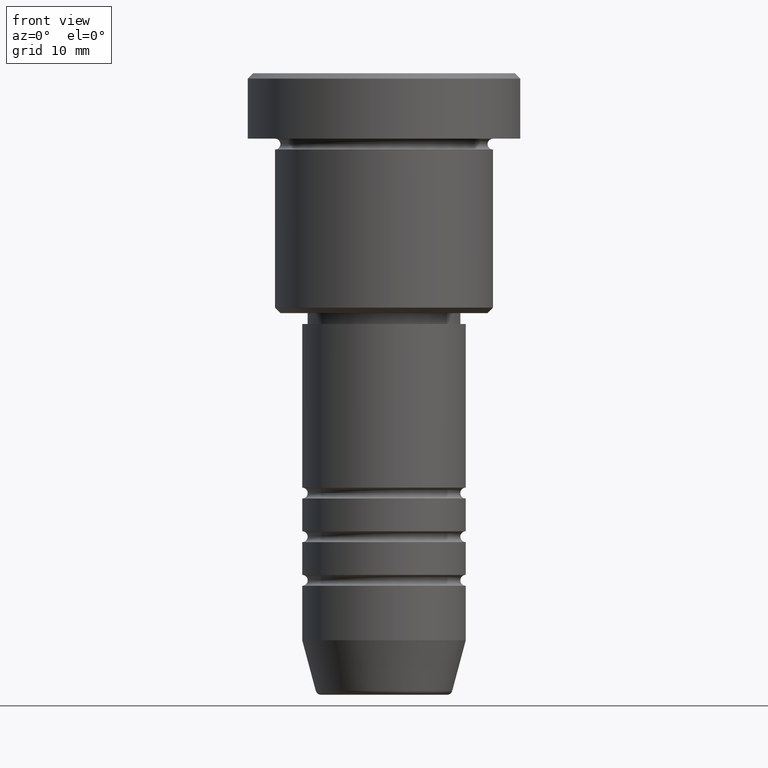
[diagram: clean part render]
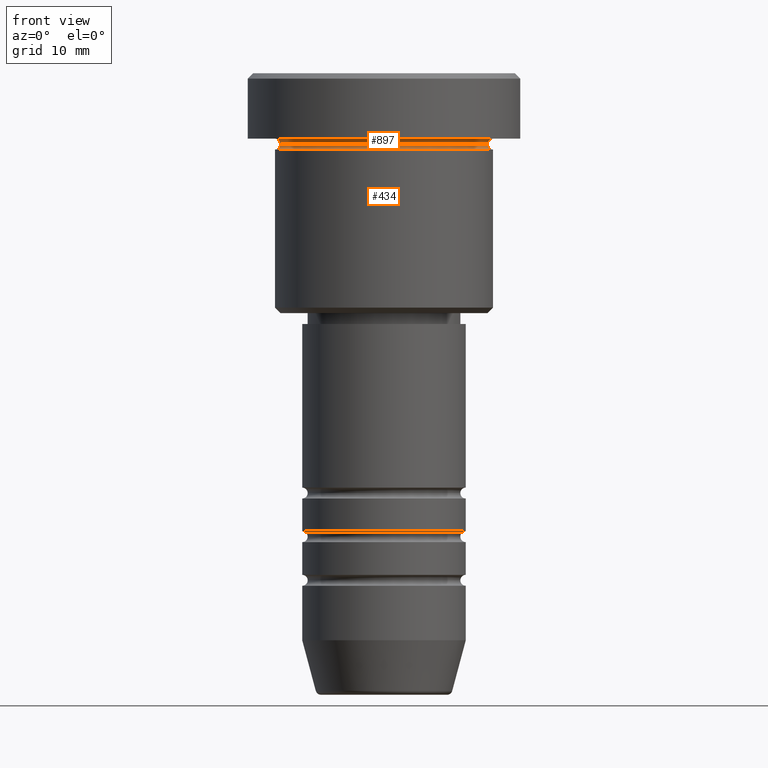
[diagram: same view with one multi-face feature highlighted, each face labeled with its STEP entity id]
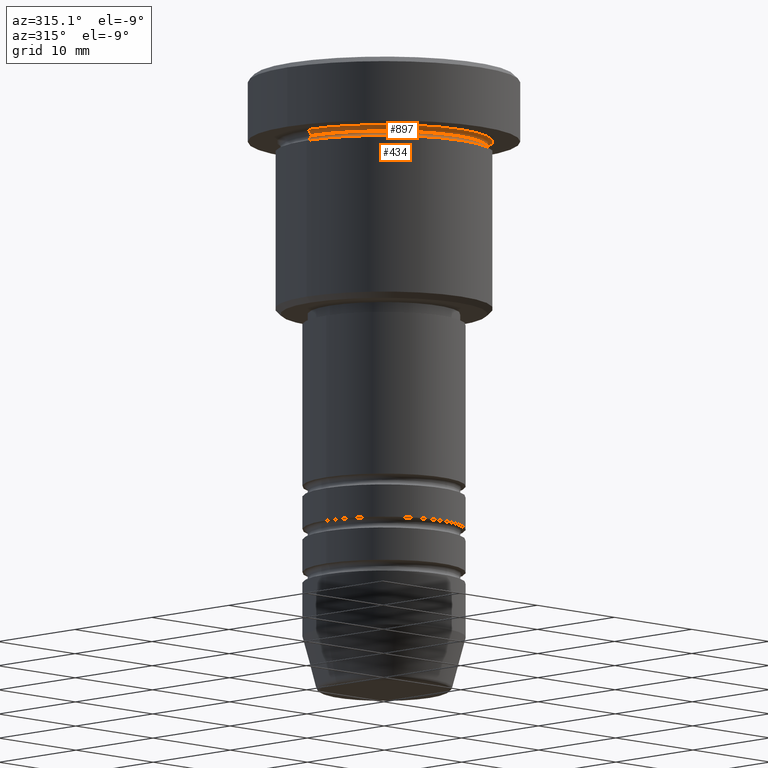
[diagram: same view with one multi-face feature highlighted, each face labeled with its STEP entity id]
A machine part, front view. The highlighted faces form ONE feature: a constant-radius fillet chain: 2 tangent blend faces with common blend radius 0.5 mm. The faces share edges in the B-rep.
A second angle (auxiliary view) of the same feature is appended — it is thin or edge-on in the first view.
Their STEP definitions:
[1] entity #897 (Torus):
#21 = DIRECTION ( 'NONE',  ( 0.000000000000000000, 0.000000000000000000, -1.000000000000000000 ) ) ;
#49 = CARTESIAN_POINT ( 'NONE',  ( 10.00000000000000000, 1.224646799147353256E-15, -5.999999999999996447 ) ) ;
#62 = CARTESIAN_POINT ( 'NONE',  ( 0.000000000000000000, 0.000000000000000000, -5.999999999999996447 ) ) ;
#63 = CARTESIAN_POINT ( 'NONE',  ( 9.500000000000000000, 0.000000000000000000, -6.499999999999997335 ) ) ;
#98 = DIRECTION ( 'NONE',  ( -0.000000000000000000, -0.000000000000000000, 1.000000000000000000 ) ) ;
#111 = ORIENTED_EDGE ( 'NONE', *, *, #903, .T. ) ;
#144 = VERTEX_POINT ( 'NONE', #1100 ) ;
#151 = VERTEX_POINT ( 'NONE', #49 ) ;
#270 = AXIS2_PLACEMENT_3D ( 'NONE', #661, #21, #390 ) ;
#378 = CARTESIAN_POINT ( 'NONE',  ( 10.00000000000000000, 1.224646799147353256E-15, -6.499999999999997335 ) ) ;
#390 = DIRECTION ( 'NONE',  ( -1.000000000000000000, 0.000000000000000000, 0.000000000000000000 ) ) ;
#403 = DIRECTION ( 'NONE',  ( 0.000000000000000000, 0.000000000000000000, -1.000000000000000000 ) ) ;
#432 = ORIENTED_EDGE ( 'NONE', *, *, #1013, .F. ) ;
#457 = FACE_OUTER_BOUND ( 'NONE', #804, .T. ) ;
#466 = DIRECTION ( 'NONE',  ( -1.224646799147353207E-16, 1.000000000000000000, 0.000000000000000000 ) ) ;
#476 = CIRCLE ( 'NONE', #1001, 10.00000000000000000 ) ;
#484 = DIRECTION ( 'NONE',  ( -1.000000000000000000, 0.000000000000000000, 0.000000000000000000 ) ) ;
#530 = EDGE_CURVE ( 'NONE', #736, #151, #555, .T. ) ;
#539 = AXIS2_PLACEMENT_3D ( 'NONE', #744, #98, #755 ) ;
#555 = CIRCLE ( 'NONE', #1057, 0.5000000000000004441 ) ;
#570 = ORIENTED_EDGE ( 'NONE', *, *, #1066, .F. ) ;
#641 = DIRECTION ( 'NONE',  ( -0.000000000000000000, -1.000000000000000000, -0.000000000000000000 ) ) ;
#661 = CARTESIAN_POINT ( 'NONE',  ( 0.000000000000000000, 0.000000000000000000, -6.499999999999997335 ) ) ;
#662 = DIRECTION ( 'NONE',  ( -1.000000000000000000, -1.224646799147353454E-16, 0.000000000000000000 ) ) ;
#736 = VERTEX_POINT ( 'NONE', #63 ) ;
#744 = CARTESIAN_POINT ( 'NONE',  ( 0.000000000000000000, 0.000000000000000000, -6.499999999999997335 ) ) ;
#750 = AXIS2_PLACEMENT_3D ( 'NONE', #760, #641, #403 ) ;
#755 = DIRECTION ( 'NONE',  ( 1.000000000000000000, 0.000000000000000000, 0.000000000000000000 ) ) ;
#760 = CARTESIAN_POINT ( 'NONE',  ( -10.00000000000000000, 0.000000000000000000, -6.499999999999997335 ) ) ;
#788 = VERTEX_POINT ( 'NONE', #817 ) ;
#804 = EDGE_LOOP ( 'NONE', ( #111, #933, #570, #432 ) ) ;
#817 = CARTESIAN_POINT ( 'NONE',  ( -10.00000000000000000, 0.000000000000000000, -5.999999999999996447 ) ) ;
#897 = ADVANCED_FACE ( 'NONE', ( #457 ), #1020, .F. ) ;
#903 = EDGE_CURVE ( 'NONE', #144, #736, #941, .T. ) ;
#933 = ORIENTED_EDGE ( 'NONE', *, *, #530, .T. ) ;
#941 = CIRCLE ( 'NONE', #539, 9.500000000000000000 ) ;
#1001 = AXIS2_PLACEMENT_3D ( 'NONE', #62, #1036, #484 ) ;
#1013 = EDGE_CURVE ( 'NONE', #144, #788, #1097, .T. ) ;
#1020 = TOROIDAL_SURFACE ( 'NONE', #270, 10.00000000000000000, 0.5000000000000000000 ) ;
#1036 = DIRECTION ( 'NONE',  ( -0.000000000000000000, -0.000000000000000000, 1.000000000000000000 ) ) ;
#1057 = AXIS2_PLACEMENT_3D ( 'NONE', #378, #466, #662 ) ;
#1066 = EDGE_CURVE ( 'NONE', #788, #151, #476, .T. ) ;
#1097 = CIRCLE ( 'NONE', #750, 0.5000000000000004441 ) ;
#1100 = CARTESIAN_POINT ( 'NONE',  ( -9.500000000000000000, 1.194030629168669469E-15, -6.499999999999997335 ) ) ;
[2] entity #434 (Torus):
#37 = DIRECTION ( 'NONE',  ( 0.000000000000000000, 0.000000000000000000, -1.000000000000000000 ) ) ;
#63 = CARTESIAN_POINT ( 'NONE',  ( 9.500000000000000000, 0.000000000000000000, -6.499999999999997335 ) ) ;
#98 = DIRECTION ( 'NONE',  ( -0.000000000000000000, -0.000000000000000000, 1.000000000000000000 ) ) ;
#117 = ORIENTED_EDGE ( 'NONE', *, *, #903, .F. ) ;
#132 = DIRECTION ( 'NONE',  ( 1.000000000000000000, 0.000000000000000000, 0.000000000000000000 ) ) ;
#144 = VERTEX_POINT ( 'NONE', #1100 ) ;
#222 = CARTESIAN_POINT ( 'NONE',  ( 10.00000000000000000, 0.000000000000000000, -6.999999999999996447 ) ) ;
#246 = CARTESIAN_POINT ( 'NONE',  ( -10.00000000000000000, 1.224646799147353256E-15, -6.499999999999997335 ) ) ;
#252 = CIRCLE ( 'NONE', #381, 0.5000000000000004441 ) ;
#260 = FACE_OUTER_BOUND ( 'NONE', #699, .T. ) ;
#268 = AXIS2_PLACEMENT_3D ( 'NONE', #1054, #1043, #37 ) ;
#285 = TOROIDAL_SURFACE ( 'NONE', #965, 10.00000000000000000, 0.5000000000000000000 ) ;
#381 = AXIS2_PLACEMENT_3D ( 'NONE', #246, #687, #411 ) ;
#411 = DIRECTION ( 'NONE',  ( -1.000000000000000000, 1.224646799147353454E-16, 0.000000000000000000 ) ) ;
#434 = ADVANCED_FACE ( 'NONE', ( #260 ), #285, .F. ) ;
#537 = CARTESIAN_POINT ( 'NONE',  ( -10.00000000000000000, 1.224646799147353256E-15, -6.999999999999996447 ) ) ;
#539 = AXIS2_PLACEMENT_3D ( 'NONE', #744, #98, #755 ) ;
#594 = VERTEX_POINT ( 'NONE', #222 ) ;
#630 = ORIENTED_EDGE ( 'NONE', *, *, #702, .T. ) ;
#642 = ORIENTED_EDGE ( 'NONE', *, *, #689, .F. ) ;
#680 = DIRECTION ( 'NONE',  ( -0.000000000000000000, -0.000000000000000000, 1.000000000000000000 ) ) ;
#682 = EDGE_CURVE ( 'NONE', #144, #778, #252, .T. ) ;
#687 = DIRECTION ( 'NONE',  ( 1.224646799147353207E-16, 1.000000000000000000, 0.000000000000000000 ) ) ;
#689 = EDGE_CURVE ( 'NONE', #736, #594, #790, .T. ) ;
#692 = CARTESIAN_POINT ( 'NONE',  ( 0.000000000000000000, 0.000000000000000000, -6.499999999999997335 ) ) ;
#699 = EDGE_LOOP ( 'NONE', ( #117, #1124, #630, #642 ) ) ;
#702 = EDGE_CURVE ( 'NONE', #778, #594, #940, .T. ) ;
#736 = VERTEX_POINT ( 'NONE', #63 ) ;
#744 = CARTESIAN_POINT ( 'NONE',  ( 0.000000000000000000, 0.000000000000000000, -6.499999999999997335 ) ) ;
#755 = DIRECTION ( 'NONE',  ( 1.000000000000000000, 0.000000000000000000, 0.000000000000000000 ) ) ;
#778 = VERTEX_POINT ( 'NONE', #537 ) ;
#790 = CIRCLE ( 'NONE', #268, 0.5000000000000004441 ) ;
#891 = DIRECTION ( 'NONE',  ( -0.000000000000000000, -0.000000000000000000, 1.000000000000000000 ) ) ;
#903 = EDGE_CURVE ( 'NONE', #144, #736, #941, .T. ) ;
#940 = CIRCLE ( 'NONE', #1173, 10.00000000000000000 ) ;
#941 = CIRCLE ( 'NONE', #539, 9.500000000000000000 ) ;
#965 = AXIS2_PLACEMENT_3D ( 'NONE', #692, #891, #1061 ) ;
#1043 = DIRECTION ( 'NONE',  ( 0.000000000000000000, -1.000000000000000000, 0.000000000000000000 ) ) ;
#1054 = CARTESIAN_POINT ( 'NONE',  ( 10.00000000000000000, 0.000000000000000000, -6.499999999999997335 ) ) ;
#1061 = DIRECTION ( 'NONE',  ( 1.000000000000000000, 0.000000000000000000, 0.000000000000000000 ) ) ;
#1100 = CARTESIAN_POINT ( 'NONE',  ( -9.500000000000000000, 1.194030629168669469E-15, -6.499999999999997335 ) ) ;
#1124 = ORIENTED_EDGE ( 'NONE', *, *, #682, .T. ) ;
#1131 = CARTESIAN_POINT ( 'NONE',  ( 0.000000000000000000, 0.000000000000000000, -6.999999999999996447 ) ) ;
#1173 = AXIS2_PLACEMENT_3D ( 'NONE', #1131, #680, #132 ) ;